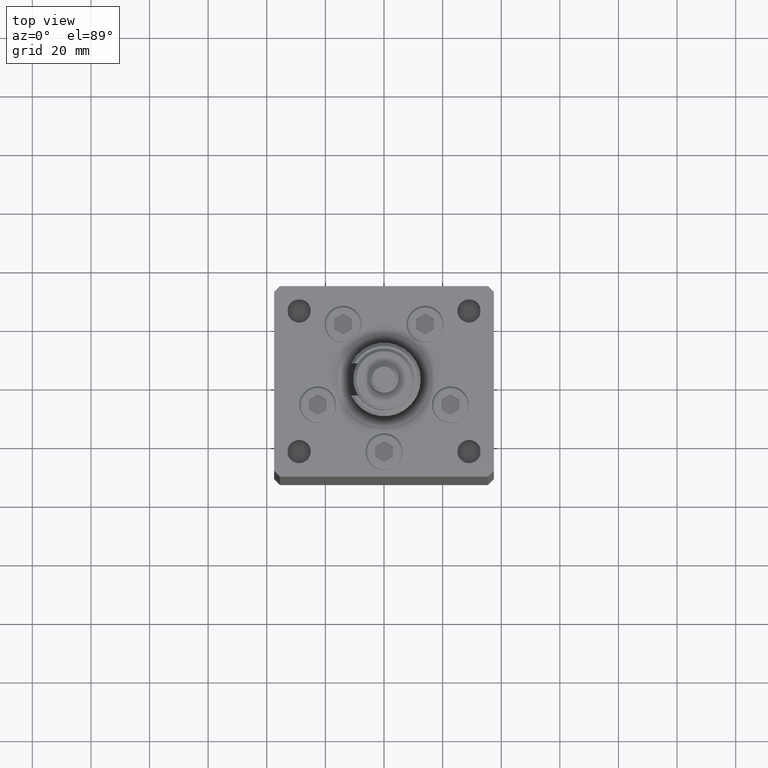
[diagram: clean part render]
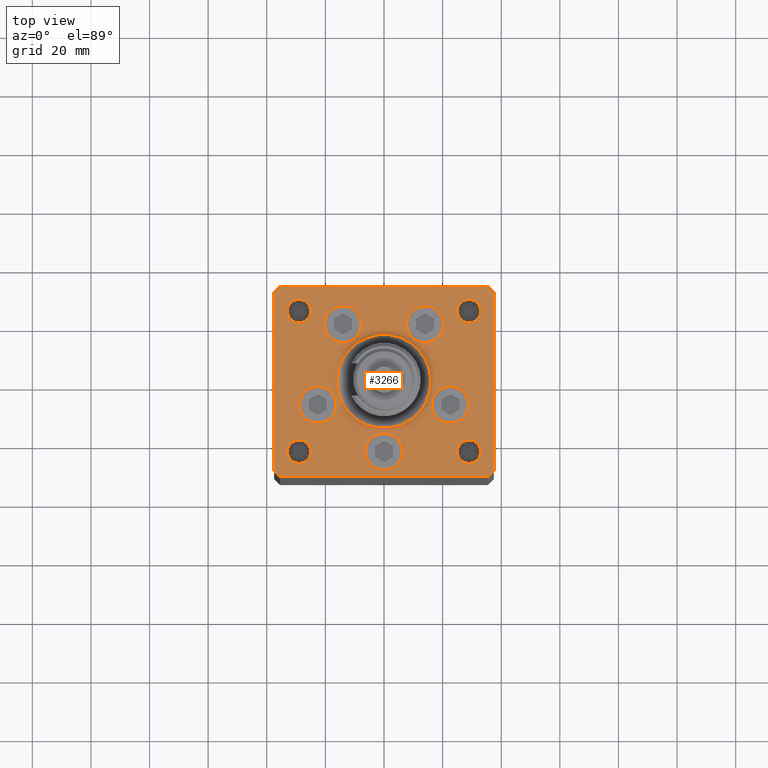
[diagram: same view with one face highlighted and labeled with its STEP entity id]
A machine part, top view. The second image highlights one B-rep face of the part: STEP entity #3266.
In plain terms, the highlighted planar face has unit normal (0, 0, 1).
Its self-contained STEP definition (entity closure, byte-faithful):
#207 = CARTESIAN_POINT ( 'NONE',  ( 6.250000000000000000, -24.00000000000001066, 0.000000000000000000 ) ) ;
#426 = CIRCLE ( 'NONE', #14493, 6.250000000000001776 ) ;
#640 = AXIS2_PLACEMENT_3D ( 'NONE', #22343, #26207, #22067 ) ;
#1222 = FACE_OUTER_BOUND ( 'NONE', #51084, .T. ) ;
#1333 = CIRCLE ( 'NONE', #32166, 4.000000000000000000 ) ;
#1418 = EDGE_LOOP ( 'NONE', ( #25428, #12095 ) ) ;
#1474 = CARTESIAN_POINT ( 'NONE',  ( 16.00000000000000355, -4.979459025271462852E-15, 0.000000000000000000 ) ) ;
#2181 = CARTESIAN_POINT ( 'NONE',  ( 29.00000000000000000, 24.00000000000000355, 0.000000000000000000 ) ) ;
#2194 = EDGE_CURVE ( 'NONE', #53952, #24382, #8054, .T. ) ;
#2532 = CARTESIAN_POINT ( 'NONE',  ( 29.00000000000000000, 24.00000000000000355, 0.000000000000000000 ) ) ;
#2919 = VECTOR ( 'NONE', #48136, 1000.000000000000000 ) ;
#2944 = VERTEX_POINT ( 'NONE', #54602 ) ;
#2966 = CARTESIAN_POINT ( 'NONE',  ( -33.00000000000000000, 24.00000000000000711, 0.000000000000000000 ) ) ;
#3051 = DIRECTION ( 'NONE',  ( 1.000000000000000000, 1.172770800660376149E-15, 0.000000000000000000 ) ) ;
#3266 = ADVANCED_FACE ( 'NONE', ( #5923, #18590, #31004, #51758, #5384, #47604, #43730, #14177, #9774, #1222, #26861 ), #18329, .T. ) ;
#3301 = VERTEX_POINT ( 'NONE', #22464 ) ;
#3335 = CARTESIAN_POINT ( 'NONE',  ( -37.50000000000001421, 30.50000000000000000, 0.000000000000000000 ) ) ;
#3394 = DIRECTION ( 'NONE',  ( 0.000000000000000000, 0.000000000000000000, 1.000000000000000000 ) ) ;
#3668 = CARTESIAN_POINT ( 'NONE',  ( 22.62741699796953299, -8.000000000000000000, 0.000000000000000000 ) ) ;
#3817 = EDGE_CURVE ( 'NONE', #44424, #7505, #36323, .T. ) ;
#4327 = ORIENTED_EDGE ( 'NONE', *, *, #16545, .T. ) ;
#4645 = DIRECTION ( 'NONE',  ( 0.000000000000000000, 0.000000000000000000, 1.000000000000000000 ) ) ;
#4920 = VERTEX_POINT ( 'NONE', #35440 ) ;
#5182 = CARTESIAN_POINT ( 'NONE',  ( -16.00000000000000355, -6.938893903907228378E-15, 0.000000000000000000 ) ) ;
#5384 = FACE_BOUND ( 'NONE', #18051, .T. ) ;
#5923 = FACE_BOUND ( 'NONE', #17051, .T. ) ;
#6091 = CARTESIAN_POINT ( 'NONE',  ( -28.87741699796953654, -8.000000000000000000, 0.000000000000000000 ) ) ;
#6432 = CARTESIAN_POINT ( 'NONE',  ( 0.000000000000000000, -24.00000000000001066, 0.000000000000000000 ) ) ;
#6910 = VECTOR ( 'NONE', #9520, 1000.000000000000000 ) ;
#7242 = DIRECTION ( 'NONE',  ( 0.000000000000000000, 0.000000000000000000, 1.000000000000000000 ) ) ;
#7361 = CIRCLE ( 'NONE', #14388, 4.000000000000000000 ) ;
#7505 = VERTEX_POINT ( 'NONE', #33435 ) ;
#7713 = CARTESIAN_POINT ( 'NONE',  ( -13.99106857963324124, 19.50000000000000000, 0.000000000000000000 ) ) ;
#8021 = CARTESIAN_POINT ( 'NONE',  ( -29.00000000000000000, 24.00000000000000711, 0.000000000000000000 ) ) ;
#8037 = CARTESIAN_POINT ( 'NONE',  ( -22.62741699796953299, -8.000000000000000000, 0.000000000000000000 ) ) ;
#8054 = CIRCLE ( 'NONE', #16005, 3.999999999999996447 ) ;
#8979 = DIRECTION ( 'NONE',  ( 1.000000000000000000, 0.000000000000000000, 0.000000000000000000 ) ) ;
#9214 = DIRECTION ( 'NONE',  ( 0.7071067811865463515, 0.7071067811865487940, 0.000000000000000000 ) ) ;
#9520 = DIRECTION ( 'NONE',  ( 0.000000000000000000, 1.000000000000000000, 0.000000000000000000 ) ) ;
#9678 = CARTESIAN_POINT ( 'NONE',  ( 37.50000000000000711, 30.50000000000001421, 0.000000000000000000 ) ) ;
#9774 = FACE_BOUND ( 'NONE', #1418, .T. ) ;
#10044 = DIRECTION ( 'NONE',  ( 1.000000000000000000, 0.000000000000000000, 0.000000000000000000 ) ) ;
#10118 = VECTOR ( 'NONE', #9214, 1000.000000000000000 ) ;
#10528 = VERTEX_POINT ( 'NONE', #12415 ) ;
#11009 = DIRECTION ( 'NONE',  ( -1.000000000000000000, 0.000000000000000000, 0.000000000000000000 ) ) ;
#11191 = AXIS2_PLACEMENT_3D ( 'NONE', #11503, #28600, #53758 ) ;
#11194 = CIRCLE ( 'NONE', #42058, 3.999999999999996447 ) ;
#11503 = CARTESIAN_POINT ( 'NONE',  ( 0.000000000000000000, -24.00000000000001066, 0.000000000000000000 ) ) ;
#11693 = AXIS2_PLACEMENT_3D ( 'NONE', #48844, #41841, #11009 ) ;
#12095 = ORIENTED_EDGE ( 'NONE', *, *, #24860, .F. ) ;
#12415 = CARTESIAN_POINT ( 'NONE',  ( -25.00000000000000000, 24.00000000000000711, 0.000000000000000000 ) ) ;
#12730 = EDGE_LOOP ( 'NONE', ( #38146, #37341 ) ) ;
#12798 = AXIS2_PLACEMENT_3D ( 'NONE', #39145, #47986, #51865 ) ;
#12806 = VERTEX_POINT ( 'NONE', #15200 ) ;
#13213 = CARTESIAN_POINT ( 'NONE',  ( -6.250000000000000000, -24.00000000000001066, 0.000000000000000000 ) ) ;
#13242 = EDGE_CURVE ( 'NONE', #3301, #50046, #28579, .T. ) ;
#13417 = EDGE_CURVE ( 'NONE', #26489, #18250, #29537, .T. ) ;
#13466 = VERTEX_POINT ( 'NONE', #30756 ) ;
#13539 = CIRCLE ( 'NONE', #47091, 4.000000000000000000 ) ;
#13730 = DIRECTION ( 'NONE',  ( 1.000000000000000000, 0.000000000000000000, 0.000000000000000000 ) ) ;
#14050 = CARTESIAN_POINT ( 'NONE',  ( -35.50000000000001421, -32.50000000000000711, 0.000000000000000000 ) ) ;
#14081 = DIRECTION ( 'NONE',  ( -0.000000000000000000, -0.000000000000000000, -1.000000000000000000 ) ) ;
#14177 = FACE_BOUND ( 'NONE', #12730, .T. ) ;
#14261 = CARTESIAN_POINT ( 'NONE',  ( -29.00000000000000000, -23.99999999999999645, 0.000000000000000000 ) ) ;
#14316 = CARTESIAN_POINT ( 'NONE',  ( 35.50000000000000000, 32.49999999999999289, 0.000000000000000000 ) ) ;
#14388 = AXIS2_PLACEMENT_3D ( 'NONE', #8021, #24833, #41697 ) ;
#14404 = DIRECTION ( 'NONE',  ( 1.000000000000000000, 0.000000000000000000, 0.000000000000000000 ) ) ;
#14493 = AXIS2_PLACEMENT_3D ( 'NONE', #3668, #3394, #20210 ) ;
#15044 = ORIENTED_EDGE ( 'NONE', *, *, #3817, .F. ) ;
#15200 = CARTESIAN_POINT ( 'NONE',  ( 28.87741699796953654, -8.000000000000000000, 0.000000000000000000 ) ) ;
#15404 = DIRECTION ( 'NONE',  ( 0.000000000000000000, 0.000000000000000000, 1.000000000000000000 ) ) ;
#15769 = DIRECTION ( 'NONE',  ( -1.000000000000000000, -1.954618001100627573E-16, 0.000000000000000000 ) ) ;
#15799 = CIRCLE ( 'NONE', #22829, 6.250000000000000000 ) ;
#16005 = AXIS2_PLACEMENT_3D ( 'NONE', #30969, #47844, #14404 ) ;
#16045 = EDGE_CURVE ( 'NONE', #13466, #40465, #40995, .T. ) ;
#16092 = EDGE_LOOP ( 'NONE', ( #24638, #42323 ) ) ;
#16104 = AXIS2_PLACEMENT_3D ( 'NONE', #8037, #7242, #27902 ) ;
#16311 = CIRCLE ( 'NONE', #12798, 6.250000000000001776 ) ;
#16545 = EDGE_CURVE ( 'NONE', #31194, #31816, #25755, .T. ) ;
#16621 = VECTOR ( 'NONE', #15769, 1000.000000000000000 ) ;
#17051 = EDGE_LOOP ( 'NONE', ( #40963, #54535 ) ) ;
#17215 = EDGE_CURVE ( 'NONE', #12806, #26528, #16311, .T. ) ;
#17453 = VECTOR ( 'NONE', #49707, 1000.000000000000000 ) ;
#17877 = DIRECTION ( 'NONE',  ( 0.000000000000000000, 0.000000000000000000, 1.000000000000000000 ) ) ;
#17960 = CIRCLE ( 'NONE', #48816, 16.00000000000000355 ) ;
#17965 = DIRECTION ( 'NONE',  ( -1.000000000000000000, 0.000000000000000000, 0.000000000000000000 ) ) ;
#18051 = EDGE_LOOP ( 'NONE', ( #36173, #19982 ) ) ;
#18056 = CARTESIAN_POINT ( 'NONE',  ( 0.000000000000000000, 0.000000000000000000, 0.000000000000000000 ) ) ;
#18064 = ORIENTED_EDGE ( 'NONE', *, *, #30552, .T. ) ;
#18250 = VERTEX_POINT ( 'NONE', #37857 ) ;
#18329 = PLANE ( 'NONE',  #50427 ) ;
#18590 = FACE_BOUND ( 'NONE', #33385, .T. ) ;
#19301 = DIRECTION ( 'NONE',  ( 1.000000000000000000, 0.000000000000000000, 0.000000000000000000 ) ) ;
#19798 = VERTEX_POINT ( 'NONE', #207 ) ;
#19836 = VERTEX_POINT ( 'NONE', #5182 ) ;
#19866 = CARTESIAN_POINT ( 'NONE',  ( -35.50000000000001421, -32.50000000000000711, 0.000000000000000000 ) ) ;
#19940 = AXIS2_PLACEMENT_3D ( 'NONE', #35328, #14081, #17965 ) ;
#19982 = ORIENTED_EDGE ( 'NONE', *, *, #21594, .F. ) ;
#20210 = DIRECTION ( 'NONE',  ( 1.000000000000000000, 0.000000000000000000, 0.000000000000000000 ) ) ;
#20246 = CARTESIAN_POINT ( 'NONE',  ( 24.99999999999999645, 24.00000000000000355, 0.000000000000000000 ) ) ;
#20471 = ORIENTED_EDGE ( 'NONE', *, *, #50615, .T. ) ;
#20550 = EDGE_LOOP ( 'NONE', ( #25647, #32259 ) ) ;
#20736 = AXIS2_PLACEMENT_3D ( 'NONE', #29135, #41862, #46278 ) ;
#20834 = CIRCLE ( 'NONE', #27001, 6.250000000000000000 ) ;
#21594 = EDGE_CURVE ( 'NONE', #22253, #19798, #20834, .T. ) ;
#21916 = ORIENTED_EDGE ( 'NONE', *, *, #43079, .F. ) ;
#22067 = DIRECTION ( 'NONE',  ( -1.000000000000000000, 0.000000000000000000, 0.000000000000000000 ) ) ;
#22199 = DIRECTION ( 'NONE',  ( 0.000000000000000000, 0.000000000000000000, 1.000000000000000000 ) ) ;
#22253 = VERTEX_POINT ( 'NONE', #13213 ) ;
#22343 = CARTESIAN_POINT ( 'NONE',  ( -29.00000000000000000, 24.00000000000000711, 0.000000000000000000 ) ) ;
#22464 = CARTESIAN_POINT ( 'NONE',  ( -35.50000000000000711, 32.49999999999997868, 0.000000000000000000 ) ) ;
#22829 = AXIS2_PLACEMENT_3D ( 'NONE', #37228, #53279, #28661 ) ;
#22983 = EDGE_CURVE ( 'NONE', #32349, #31194, #37514, .T. ) ;
#23175 = DIRECTION ( 'NONE',  ( -0.7071067811865524577, 0.7071067811865426878, 0.000000000000000000 ) ) ;
#23478 = EDGE_CURVE ( 'NONE', #34870, #2944, #1333, .T. ) ;
#23734 = EDGE_CURVE ( 'NONE', #35620, #10528, #47347, .T. ) ;
#24382 = VERTEX_POINT ( 'NONE', #45321 ) ;
#24515 = DIRECTION ( 'NONE',  ( 0.000000000000000000, 0.000000000000000000, 1.000000000000000000 ) ) ;
#24638 = ORIENTED_EDGE ( 'NONE', *, *, #47559, .T. ) ;
#24833 = DIRECTION ( 'NONE',  ( -0.000000000000000000, -0.000000000000000000, -1.000000000000000000 ) ) ;
#24860 = EDGE_CURVE ( 'NONE', #24382, #53952, #11194, .T. ) ;
#25254 = CARTESIAN_POINT ( 'NONE',  ( -35.50000000000000711, 32.49999999999997868, 0.000000000000000000 ) ) ;
#25428 = ORIENTED_EDGE ( 'NONE', *, *, #2194, .F. ) ;
#25647 = ORIENTED_EDGE ( 'NONE', *, *, #17215, .F. ) ;
#25755 = LINE ( 'NONE', #26029, #10118 ) ;
#26029 = CARTESIAN_POINT ( 'NONE',  ( 35.50000000000001421, -32.49999999999992184, 0.000000000000000000 ) ) ;
#26207 = DIRECTION ( 'NONE',  ( -0.000000000000000000, -0.000000000000000000, -1.000000000000000000 ) ) ;
#26489 = VERTEX_POINT ( 'NONE', #29192 ) ;
#26528 = VERTEX_POINT ( 'NONE', #47156 ) ;
#26583 = ORIENTED_EDGE ( 'NONE', *, *, #48131, .F. ) ;
#26861 = FACE_BOUND ( 'NONE', #16092, .T. ) ;
#26875 = CARTESIAN_POINT ( 'NONE',  ( 13.99106857963324124, 19.50000000000000000, 0.000000000000000000 ) ) ;
#27001 = AXIS2_PLACEMENT_3D ( 'NONE', #6432, #53093, #52533 ) ;
#27385 = CARTESIAN_POINT ( 'NONE',  ( -20.24106857963324302, 19.50000000000000000, 0.000000000000000000 ) ) ;
#27664 = EDGE_CURVE ( 'NONE', #19798, #22253, #51755, .T. ) ;
#27902 = DIRECTION ( 'NONE',  ( 1.000000000000000000, 0.000000000000000000, 0.000000000000000000 ) ) ;
#28579 = LINE ( 'NONE', #25254, #40114 ) ;
#28600 = DIRECTION ( 'NONE',  ( 0.000000000000000000, 0.000000000000000000, 1.000000000000000000 ) ) ;
#28661 = DIRECTION ( 'NONE',  ( 1.000000000000000000, 0.000000000000000000, 0.000000000000000000 ) ) ;
#29135 = CARTESIAN_POINT ( 'NONE',  ( 0.000000000000000000, -6.938893903907228378E-15, 0.000000000000000000 ) ) ;
#29192 = CARTESIAN_POINT ( 'NONE',  ( 20.24106857963324302, 19.50000000000000000, 0.000000000000000000 ) ) ;
#29238 = ORIENTED_EDGE ( 'NONE', *, *, #49306, .T. ) ;
#29537 = CIRCLE ( 'NONE', #31304, 6.250000000000000000 ) ;
#29590 = ORIENTED_EDGE ( 'NONE', *, *, #31390, .T. ) ;
#30173 = CARTESIAN_POINT ( 'NONE',  ( 13.99106857963324124, 19.50000000000000000, 0.000000000000000000 ) ) ;
#30476 = LINE ( 'NONE', #51760, #6910 ) ;
#30552 = EDGE_CURVE ( 'NONE', #50046, #4920, #53857, .T. ) ;
#30553 = CARTESIAN_POINT ( 'NONE',  ( -22.62741699796953299, -8.000000000000000000, 0.000000000000000000 ) ) ;
#30756 = CARTESIAN_POINT ( 'NONE',  ( 25.00000000000000355, -23.99999999999999645, 0.000000000000000000 ) ) ;
#30969 = CARTESIAN_POINT ( 'NONE',  ( -29.00000000000000000, -23.99999999999999645, 0.000000000000000000 ) ) ;
#31004 = FACE_BOUND ( 'NONE', #40498, .T. ) ;
#31194 = VERTEX_POINT ( 'NONE', #37675 ) ;
#31242 = DIRECTION ( 'NONE',  ( 0.000000000000000000, 0.000000000000000000, 1.000000000000000000 ) ) ;
#31265 = CARTESIAN_POINT ( 'NONE',  ( -37.50000000000000000, -30.50000000000004263, 0.000000000000000000 ) ) ;
#31304 = AXIS2_PLACEMENT_3D ( 'NONE', #26875, #43744, #38779 ) ;
#31390 = EDGE_CURVE ( 'NONE', #31816, #45622, #30476, .T. ) ;
#31816 = VERTEX_POINT ( 'NONE', #39303 ) ;
#32166 = AXIS2_PLACEMENT_3D ( 'NONE', #2532, #53869, #49717 ) ;
#32246 = DIRECTION ( 'NONE',  ( 1.000000000000000000, 0.000000000000000000, 0.000000000000000000 ) ) ;
#32259 = ORIENTED_EDGE ( 'NONE', *, *, #53388, .F. ) ;
#32349 = VERTEX_POINT ( 'NONE', #14050 ) ;
#32393 = VERTEX_POINT ( 'NONE', #14316 ) ;
#32482 = CARTESIAN_POINT ( 'NONE',  ( -7.741068579633241242, 19.50000000000000000, 0.000000000000000000 ) ) ;
#32997 = DIRECTION ( 'NONE',  ( -0.7071067811865524577, -0.7071067811865426878, 0.000000000000000000 ) ) ;
#33113 = EDGE_CURVE ( 'NONE', #32393, #3301, #36741, .T. ) ;
#33316 = CARTESIAN_POINT ( 'NONE',  ( -25.00000000000000355, -23.99999999999999645, 0.000000000000000000 ) ) ;
#33385 = EDGE_LOOP ( 'NONE', ( #21916, #39843 ) ) ;
#33388 = EDGE_LOOP ( 'NONE', ( #20471, #43516 ) ) ;
#33435 = CARTESIAN_POINT ( 'NONE',  ( -16.37741699796953299, -8.000000000000000000, 0.000000000000000000 ) ) ;
#34160 = EDGE_LOOP ( 'NONE', ( #26583, #15044 ) ) ;
#34280 = EDGE_CURVE ( 'NONE', #37069, #40988, #15799, .T. ) ;
#34599 = ORIENTED_EDGE ( 'NONE', *, *, #35173, .T. ) ;
#34870 = VERTEX_POINT ( 'NONE', #20246 ) ;
#35173 = EDGE_CURVE ( 'NONE', #45622, #32393, #38940, .T. ) ;
#35328 = CARTESIAN_POINT ( 'NONE',  ( 29.00000000000000355, -23.99999999999999645, 0.000000000000000000 ) ) ;
#35394 = AXIS2_PLACEMENT_3D ( 'NONE', #30173, #31242, #51987 ) ;
#35417 = LINE ( 'NONE', #31265, #2919 ) ;
#35440 = CARTESIAN_POINT ( 'NONE',  ( -37.50000000000000000, -30.50000000000004263, 0.000000000000000000 ) ) ;
#35514 = ORIENTED_EDGE ( 'NONE', *, *, #13242, .T. ) ;
#35620 = VERTEX_POINT ( 'NONE', #2966 ) ;
#35638 = ORIENTED_EDGE ( 'NONE', *, *, #22983, .T. ) ;
#36074 = VECTOR ( 'NONE', #23175, 1000.000000000000000 ) ;
#36173 = ORIENTED_EDGE ( 'NONE', *, *, #27664, .F. ) ;
#36323 = CIRCLE ( 'NONE', #51337, 6.250000000000001776 ) ;
#36741 = LINE ( 'NONE', #53610, #16621 ) ;
#36928 = VERTEX_POINT ( 'NONE', #1474 ) ;
#37069 = VERTEX_POINT ( 'NONE', #27385 ) ;
#37099 = AXIS2_PLACEMENT_3D ( 'NONE', #7713, #24515, #19301 ) ;
#37228 = CARTESIAN_POINT ( 'NONE',  ( -13.99106857963324124, 19.50000000000000000, 0.000000000000000000 ) ) ;
#37341 = ORIENTED_EDGE ( 'NONE', *, *, #23478, .F. ) ;
#37514 = LINE ( 'NONE', #19866, #37658 ) ;
#37658 = VECTOR ( 'NONE', #3051, 1000.000000000000000 ) ;
#37675 = CARTESIAN_POINT ( 'NONE',  ( 35.50000000000001421, -32.49999999999992184, 0.000000000000000000 ) ) ;
#37857 = CARTESIAN_POINT ( 'NONE',  ( 7.741068579633241242, 19.50000000000000000, 0.000000000000000000 ) ) ;
#37966 = CIRCLE ( 'NONE', #37099, 6.250000000000000000 ) ;
#38146 = ORIENTED_EDGE ( 'NONE', *, *, #50749, .F. ) ;
#38779 = DIRECTION ( 'NONE',  ( 1.000000000000000000, 0.000000000000000000, 0.000000000000000000 ) ) ;
#38940 = LINE ( 'NONE', #9678, #36074 ) ;
#39145 = CARTESIAN_POINT ( 'NONE',  ( 22.62741699796953299, -8.000000000000000000, 0.000000000000000000 ) ) ;
#39303 = CARTESIAN_POINT ( 'NONE',  ( 37.50000000000000711, -30.49999999999992895, 0.000000000000000000 ) ) ;
#39669 = ORIENTED_EDGE ( 'NONE', *, *, #13417, .F. ) ;
#39681 = CARTESIAN_POINT ( 'NONE',  ( 37.50000000000000711, 30.50000000000001421, 0.000000000000000000 ) ) ;
#39843 = ORIENTED_EDGE ( 'NONE', *, *, #34280, .F. ) ;
#39893 = CIRCLE ( 'NONE', #16104, 6.250000000000001776 ) ;
#40114 = VECTOR ( 'NONE', #32997, 1000.000000000000000 ) ;
#40465 = VERTEX_POINT ( 'NONE', #46145 ) ;
#40498 = EDGE_LOOP ( 'NONE', ( #39669, #49169 ) ) ;
#40963 = ORIENTED_EDGE ( 'NONE', *, *, #54517, .F. ) ;
#40988 = VERTEX_POINT ( 'NONE', #32482 ) ;
#40995 = CIRCLE ( 'NONE', #19940, 4.000000000000000000 ) ;
#41697 = DIRECTION ( 'NONE',  ( -1.000000000000000000, 0.000000000000000000, 0.000000000000000000 ) ) ;
#41841 = DIRECTION ( 'NONE',  ( -0.000000000000000000, -0.000000000000000000, -1.000000000000000000 ) ) ;
#41862 = DIRECTION ( 'NONE',  ( 0.000000000000000000, 0.000000000000000000, 1.000000000000000000 ) ) ;
#42058 = AXIS2_PLACEMENT_3D ( 'NONE', #14261, #17877, #13730 ) ;
#42323 = ORIENTED_EDGE ( 'NONE', *, *, #16045, .T. ) ;
#43079 = EDGE_CURVE ( 'NONE', #40988, #37069, #37966, .T. ) ;
#43192 = CARTESIAN_POINT ( 'NONE',  ( 0.000000000000000000, -6.938893903907228378E-15, 0.000000000000000000 ) ) ;
#43516 = ORIENTED_EDGE ( 'NONE', *, *, #23734, .T. ) ;
#43730 = FACE_BOUND ( 'NONE', #33388, .T. ) ;
#43744 = DIRECTION ( 'NONE',  ( 0.000000000000000000, 0.000000000000000000, 1.000000000000000000 ) ) ;
#44325 = CIRCLE ( 'NONE', #11693, 4.000000000000000000 ) ;
#44424 = VERTEX_POINT ( 'NONE', #6091 ) ;
#44891 = EDGE_CURVE ( 'NONE', #18250, #26489, #49535, .T. ) ;
#45321 = CARTESIAN_POINT ( 'NONE',  ( -32.99999999999999289, -23.99999999999999645, 0.000000000000000000 ) ) ;
#45622 = VERTEX_POINT ( 'NONE', #39681 ) ;
#46145 = CARTESIAN_POINT ( 'NONE',  ( 33.00000000000000000, -23.99999999999999645, 0.000000000000000000 ) ) ;
#46278 = DIRECTION ( 'NONE',  ( 1.000000000000000000, 0.000000000000000000, 0.000000000000000000 ) ) ;
#47091 = AXIS2_PLACEMENT_3D ( 'NONE', #2181, #15404, #32246 ) ;
#47156 = CARTESIAN_POINT ( 'NONE',  ( 16.37741699796953299, -8.000000000000000000, 0.000000000000000000 ) ) ;
#47347 = CIRCLE ( 'NONE', #640, 4.000000000000000000 ) ;
#47559 = EDGE_CURVE ( 'NONE', #40465, #13466, #44325, .T. ) ;
#47604 = FACE_BOUND ( 'NONE', #34160, .T. ) ;
#47844 = DIRECTION ( 'NONE',  ( 0.000000000000000000, 0.000000000000000000, 1.000000000000000000 ) ) ;
#47986 = DIRECTION ( 'NONE',  ( 0.000000000000000000, 0.000000000000000000, 1.000000000000000000 ) ) ;
#48131 = EDGE_CURVE ( 'NONE', #7505, #44424, #39893, .T. ) ;
#48136 = DIRECTION ( 'NONE',  ( 0.7071067811865512365, -0.7071067811865439090, 0.000000000000000000 ) ) ;
#48816 = AXIS2_PLACEMENT_3D ( 'NONE', #43192, #22199, #8979 ) ;
#48844 = CARTESIAN_POINT ( 'NONE',  ( 29.00000000000000355, -23.99999999999999645, 0.000000000000000000 ) ) ;
#49169 = ORIENTED_EDGE ( 'NONE', *, *, #44891, .F. ) ;
#49306 = EDGE_CURVE ( 'NONE', #4920, #32349, #35417, .T. ) ;
#49535 = CIRCLE ( 'NONE', #35394, 6.250000000000000000 ) ;
#49707 = DIRECTION ( 'NONE',  ( 2.275047181608926165E-16, -1.000000000000000000, 0.000000000000000000 ) ) ;
#49717 = DIRECTION ( 'NONE',  ( 1.000000000000000000, 0.000000000000000000, 0.000000000000000000 ) ) ;
#50046 = VERTEX_POINT ( 'NONE', #50464 ) ;
#50378 = EDGE_CURVE ( 'NONE', #36928, #19836, #17960, .T. ) ;
#50427 = AXIS2_PLACEMENT_3D ( 'NONE', #18056, #52834, #10044 ) ;
#50464 = CARTESIAN_POINT ( 'NONE',  ( -37.50000000000001421, 30.50000000000000000, 0.000000000000000000 ) ) ;
#50615 = EDGE_CURVE ( 'NONE', #10528, #35620, #7361, .T. ) ;
#50749 = EDGE_CURVE ( 'NONE', #2944, #34870, #13539, .T. ) ;
#51017 = DIRECTION ( 'NONE',  ( 1.000000000000000000, 0.000000000000000000, 0.000000000000000000 ) ) ;
#51084 = EDGE_LOOP ( 'NONE', ( #29238, #35638, #4327, #29590, #34599, #52276, #35514, #18064 ) ) ;
#51337 = AXIS2_PLACEMENT_3D ( 'NONE', #30553, #4645, #51017 ) ;
#51627 = CIRCLE ( 'NONE', #20736, 16.00000000000000355 ) ;
#51755 = CIRCLE ( 'NONE', #11191, 6.250000000000000000 ) ;
#51758 = FACE_BOUND ( 'NONE', #20550, .T. ) ;
#51760 = CARTESIAN_POINT ( 'NONE',  ( 37.50000000000000711, -30.49999999999992895, 0.000000000000000000 ) ) ;
#51865 = DIRECTION ( 'NONE',  ( 1.000000000000000000, 0.000000000000000000, 0.000000000000000000 ) ) ;
#51987 = DIRECTION ( 'NONE',  ( 1.000000000000000000, 0.000000000000000000, 0.000000000000000000 ) ) ;
#52276 = ORIENTED_EDGE ( 'NONE', *, *, #33113, .T. ) ;
#52533 = DIRECTION ( 'NONE',  ( 1.000000000000000000, 0.000000000000000000, 0.000000000000000000 ) ) ;
#52834 = DIRECTION ( 'NONE',  ( -0.000000000000000000, 0.000000000000000000, 1.000000000000000000 ) ) ;
#53093 = DIRECTION ( 'NONE',  ( 0.000000000000000000, 0.000000000000000000, 1.000000000000000000 ) ) ;
#53279 = DIRECTION ( 'NONE',  ( 0.000000000000000000, 0.000000000000000000, 1.000000000000000000 ) ) ;
#53388 = EDGE_CURVE ( 'NONE', #26528, #12806, #426, .T. ) ;
#53610 = CARTESIAN_POINT ( 'NONE',  ( 35.50000000000000000, 32.49999999999999289, 0.000000000000000000 ) ) ;
#53758 = DIRECTION ( 'NONE',  ( 1.000000000000000000, 0.000000000000000000, 0.000000000000000000 ) ) ;
#53857 = LINE ( 'NONE', #3335, #17453 ) ;
#53869 = DIRECTION ( 'NONE',  ( 0.000000000000000000, 0.000000000000000000, 1.000000000000000000 ) ) ;
#53952 = VERTEX_POINT ( 'NONE', #33316 ) ;
#54517 = EDGE_CURVE ( 'NONE', #19836, #36928, #51627, .T. ) ;
#54535 = ORIENTED_EDGE ( 'NONE', *, *, #50378, .F. ) ;
#54602 = CARTESIAN_POINT ( 'NONE',  ( 33.00000000000000000, 24.00000000000000355, 0.000000000000000000 ) ) ;